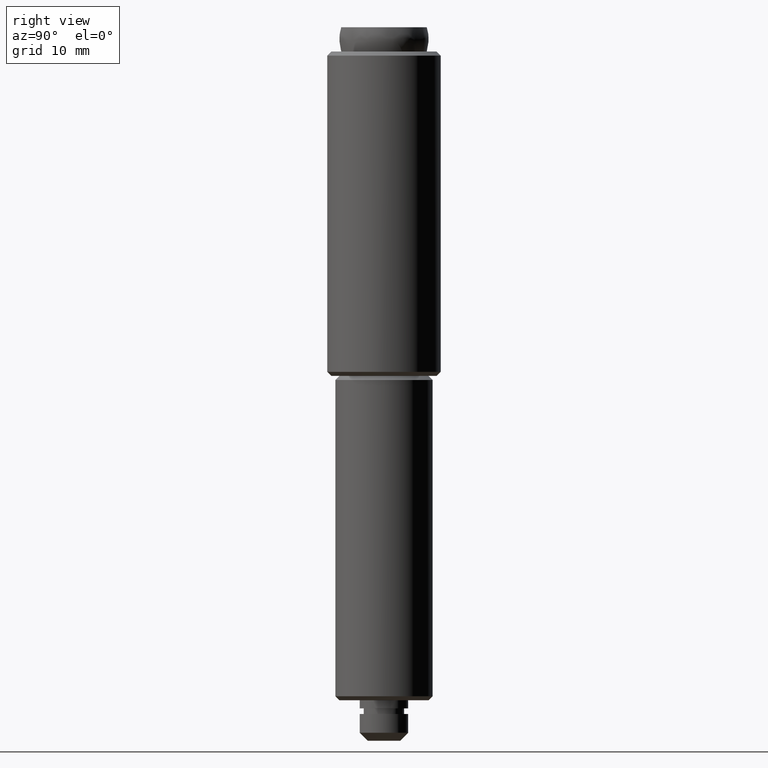
[diagram: clean part render]
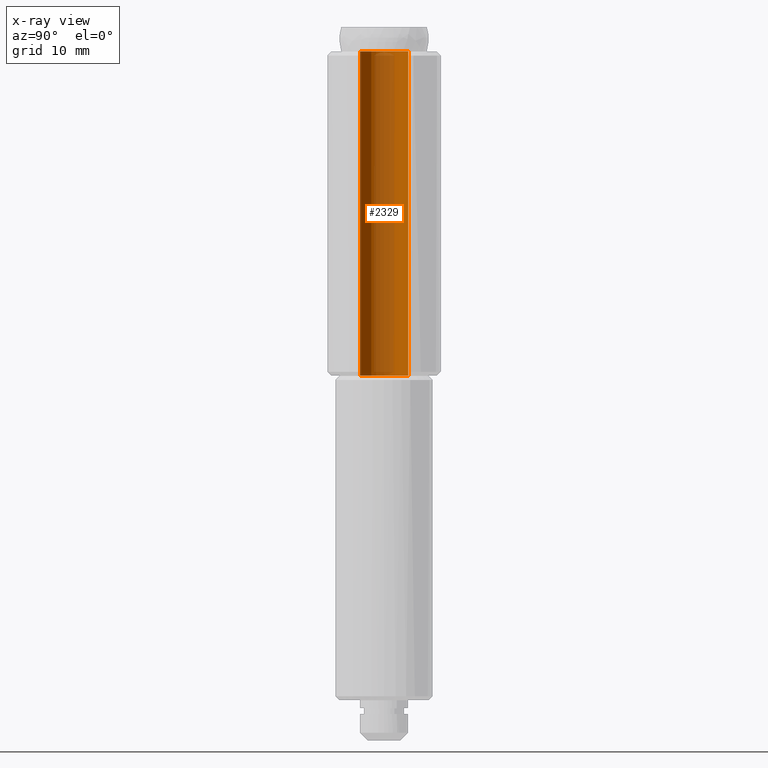
[diagram: x-ray — body ghosted, one internal face saturated and labeled with its STEP entity id]
A machine part, right view, then the same camera in x-ray: the body is ghosted and one INTERNAL B-rep face — a face not visible from any outside direction — is saturated and labeled: STEP entity #2329.
In plain terms, the highlighted face is a freeform B-spline surface patch.
Its self-contained STEP definition (entity closure, byte-faithful):
#2227=CARTESIAN_POINT('',(0.354102703970275,-2.979028579091000,86.000000000000028));
#2228=CARTESIAN_POINT('',(0.268844185913933,-2.989162846345817,86.000000000000014));
#2229=CARTESIAN_POINT('',(0.183145618604571,-2.994404395265600,86.000000000000014));
#2230=CARTESIAN_POINT('',(-2.811258776661029,-3.177550013870171,86.000000000000014));
#2231=CARTESIAN_POINT('',(-2.994404395265600,-0.183145618604571,86.000000000000014));
#2232=CARTESIAN_POINT('',(-3.177550013870171,2.811258776661029,86.000000000000014));
#2233=CARTESIAN_POINT('',(-0.183145618604571,2.994404395265600,86.000000000000014));
#2234=CARTESIAN_POINT('',(0.354102703970275,-2.979028579091000,43.975000000000001));
#2235=CARTESIAN_POINT('',(0.268844185913933,-2.989162846345817,43.974999999999994));
#2236=CARTESIAN_POINT('',(0.183145618604571,-2.994404395265600,43.974999999999987));
#2237=CARTESIAN_POINT('',(-2.811258776661029,-3.177550013870171,43.974999999999987));
#2238=CARTESIAN_POINT('',(-2.994404395265600,-0.183145618604571,43.974999999999987));
#2239=CARTESIAN_POINT('',(-3.177550013870171,2.811258776661029,43.974999999999987));
#2240=CARTESIAN_POINT('',(-0.183145618604571,2.994404395265600,43.974999999999987));
#2248=(BOUNDED_SURFACE()B_SPLINE_SURFACE(2,1,((#2227,#2234),(#2228,#2235),(#2229,#2236),(#2230,#2237),(#2231,#2238),(#2232,#2239),(#2233,#2240)),.UNSPECIFIED.,.F.,.F.,.U.)B_SPLINE_SURFACE_WITH_KNOTS((3,2,2,3),(2,2),(0.0,0.198822509939086,5.169385258416225,10.139948006893370),(0.0,42.025000000000027),.UNSPECIFIED.)GEOMETRIC_REPRESENTATION_ITEM()RATIONAL_B_SPLINE_SURFACE(((0.977505800795127,0.977505800795127),(0.988284271247462,0.988284271247462),(1.0,1.0),(0.707106781186548,0.707106781186548),(1.0,1.0),(0.707106781186548,0.707106781186548),(1.0,1.0)))REPRESENTATION_ITEM('')SURFACE());
#2249=CARTESIAN_POINT('',(0.354102703992168,-2.979028579088397,45.0));
#2250=VERTEX_POINT('',#2249);
#2251=CARTESIAN_POINT('',(-3.0,0.0,45.0));
#2252=VERTEX_POINT('',#2251);
#2253=CARTESIAN_POINT('',(0.354102703992168,-2.979028579088397,45.0));
#2254=CARTESIAN_POINT('',(0.177672358977854,-3.0,45.000000000000007));
#2255=CARTESIAN_POINT('',(0.0,-3.0,45.0));
#2256=CARTESIAN_POINT('',(-3.0,-3.0,45.0));
#2257=CARTESIAN_POINT('',(-3.0,0.0,45.0));
#2265=(BOUNDED_CURVE()B_SPLINE_CURVE(2,(#2253,#2254,#2255,#2256,#2257),.UNSPECIFIED.,.F.,.U.)B_SPLINE_CURVE_WITH_KNOTS((3,2,3),(0.229562473513160,0.250000000000000,0.500000000000000),.UNSPECIFIED.)CURVE()GEOMETRIC_REPRESENTATION_ITEM()RATIONAL_B_SPLINE_CURVE((0.956026754183017,0.976055948330737,1.0,0.707106781186548,1.0))REPRESENTATION_ITEM(''));
#2266=EDGE_CURVE('',#2250,#2252,#2265,.T.);
#2267=ORIENTED_EDGE('',*,*,#2266,.T.);
#2268=CARTESIAN_POINT('',(-0.183145618696712,2.994404395259965,45.0));
#2269=VERTEX_POINT('',#2268);
#2270=CARTESIAN_POINT('',(-3.0,0.0,45.0));
#2271=CARTESIAN_POINT('',(-3.000000000000001,2.822118200543074,45.000000000000007));
#2272=CARTESIAN_POINT('',(-0.183145618696712,2.994404395259965,45.0));
#2280=(BOUNDED_CURVE()B_SPLINE_CURVE(2,(#2270,#2271,#2272),.UNSPECIFIED.,.F.,.U.)B_SPLINE_CURVE_WITH_KNOTS((3,3),(0.500000000000000,0.739332962231349),.UNSPECIFIED.)CURVE()GEOMETRIC_REPRESENTATION_ITEM()RATIONAL_B_SPLINE_CURVE((1.0,0.719603993295607,0.976072041650442))REPRESENTATION_ITEM(''));
#2281=EDGE_CURVE('',#2252,#2269,#2280,.T.);
#2282=ORIENTED_EDGE('',*,*,#2281,.T.);
#2283=CARTESIAN_POINT('',(-0.183145618696712,2.994404395259965,85.0));
#2284=VERTEX_POINT('',#2283);
#2285=CARTESIAN_POINT('',(-0.183145618696712,2.994404395259965,85.0));
#2286=CARTESIAN_POINT('',(-0.183145618696712,2.994404395259965,45.0));
#2287=QUASI_UNIFORM_CURVE('',1,(#2285,#2286),.UNSPECIFIED.,.F.,.U.);
#2288=EDGE_CURVE('',#2284,#2269,#2287,.T.);
#2289=ORIENTED_EDGE('',*,*,#2288,.F.);
#2290=CARTESIAN_POINT('',(-3.0,0.0,85.0));
#2291=VERTEX_POINT('',#2290);
#2292=CARTESIAN_POINT('',(-3.0,0.0,85.0));
#2293=CARTESIAN_POINT('',(-3.000000000000001,2.822118200543074,85.000000000000014));
#2294=CARTESIAN_POINT('',(-0.183145618696712,2.994404395259965,85.0));
#2302=(BOUNDED_CURVE()B_SPLINE_CURVE(2,(#2292,#2293,#2294),.UNSPECIFIED.,.F.,.U.)B_SPLINE_CURVE_WITH_KNOTS((3,3),(0.500000000000000,0.739332962231349),.UNSPECIFIED.)CURVE()GEOMETRIC_REPRESENTATION_ITEM()RATIONAL_B_SPLINE_CURVE((1.0,0.719603993295607,0.976072041650442))REPRESENTATION_ITEM(''));
#2303=EDGE_CURVE('',#2291,#2284,#2302,.T.);
#2304=ORIENTED_EDGE('',*,*,#2303,.F.);
#2305=CARTESIAN_POINT('',(0.354102703992168,-2.979028579088397,85.0));
#2306=VERTEX_POINT('',#2305);
#2307=CARTESIAN_POINT('',(0.354102703992168,-2.979028579088397,85.0));
#2308=CARTESIAN_POINT('',(0.177672358977854,-3.0,85.0));
#2309=CARTESIAN_POINT('',(0.0,-3.0,85.0));
#2310=CARTESIAN_POINT('',(-3.0,-3.0,85.0));
#2311=CARTESIAN_POINT('',(-3.0,0.0,85.0));
#2319=(BOUNDED_CURVE()B_SPLINE_CURVE(2,(#2307,#2308,#2309,#2310,#2311),.UNSPECIFIED.,.F.,.U.)B_SPLINE_CURVE_WITH_KNOTS((3,2,3),(0.229562473513160,0.250000000000000,0.500000000000000),.UNSPECIFIED.)CURVE()GEOMETRIC_REPRESENTATION_ITEM()RATIONAL_B_SPLINE_CURVE((0.956026754183017,0.976055948330737,1.0,0.707106781186548,1.0))REPRESENTATION_ITEM(''));
#2320=EDGE_CURVE('',#2306,#2291,#2319,.T.);
#2321=ORIENTED_EDGE('',*,*,#2320,.F.);
#2322=CARTESIAN_POINT('',(0.354102703992168,-2.979028579088397,85.0));
#2323=CARTESIAN_POINT('',(0.354102703992168,-2.979028579088397,45.0));
#2324=QUASI_UNIFORM_CURVE('',1,(#2322,#2323),.UNSPECIFIED.,.F.,.U.);
#2325=EDGE_CURVE('',#2306,#2250,#2324,.T.);
#2326=ORIENTED_EDGE('',*,*,#2325,.T.);
#2327=EDGE_LOOP('',(#2267,#2282,#2289,#2304,#2321,#2326));
#2328=FACE_OUTER_BOUND('',#2327,.T.);
#2329=ADVANCED_FACE('',(#2328),#2248,.F.);